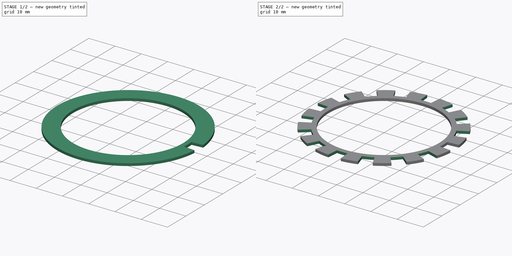
[diagram: build sequence overview — one tinted view per stage of 2, left to right]
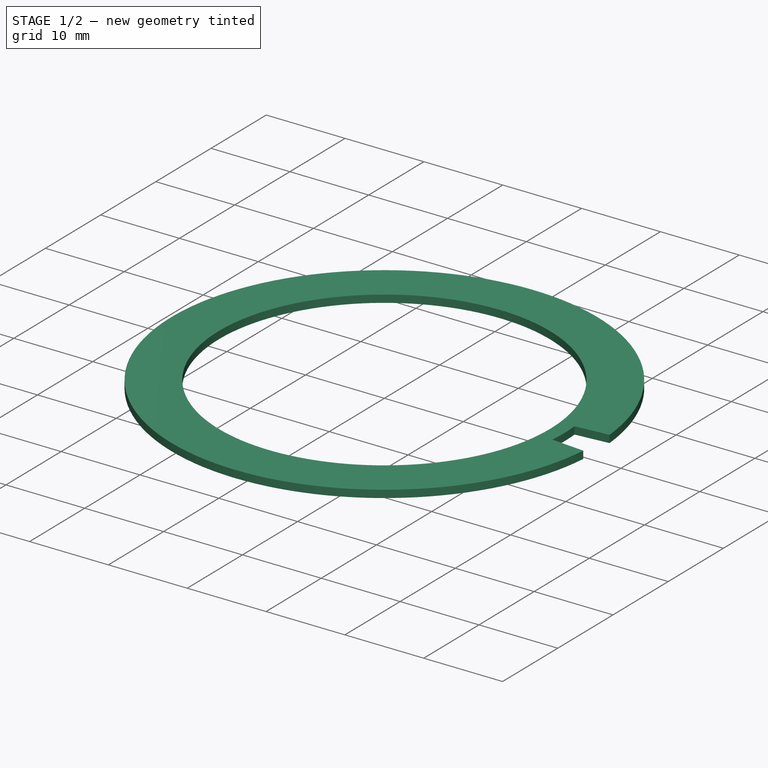
[diagram: stage 1 of 2 — iso view after this stage's code; geometry added in this stage tinted green]
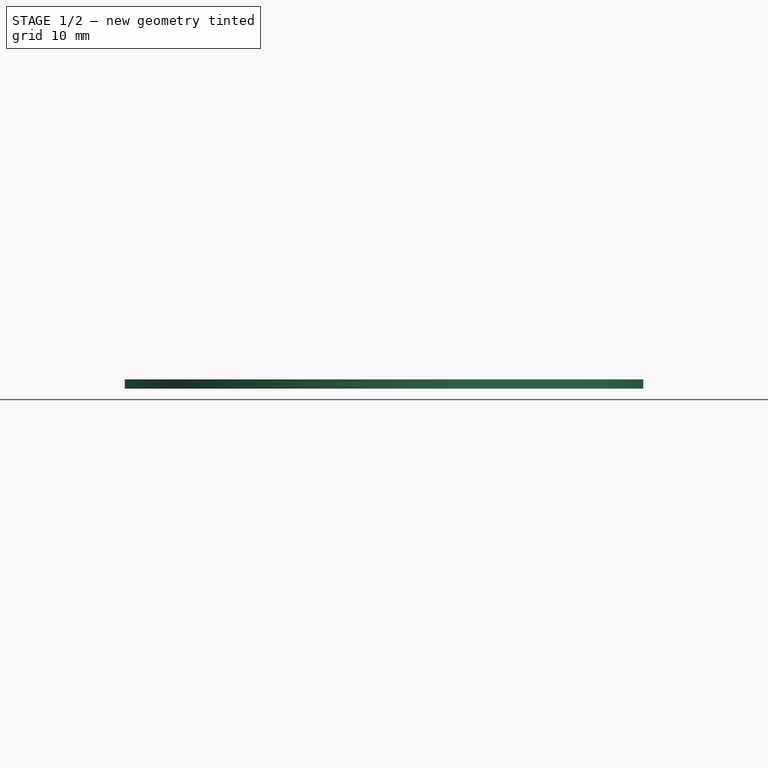
[diagram: stage 1 of 2 — front view after this stage's code; geometry added in this stage tinted green]
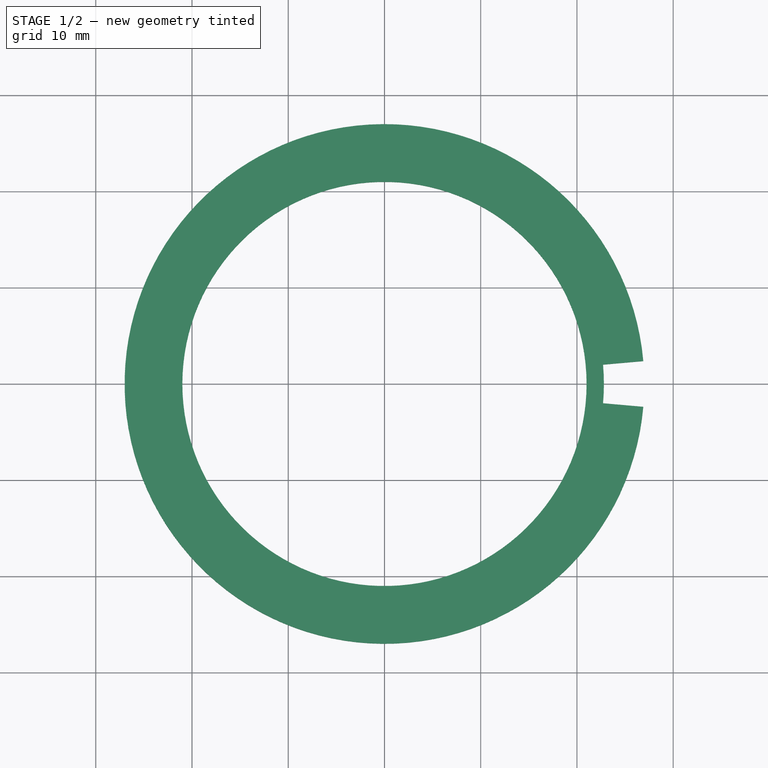
[diagram: stage 1 of 2 — top view after this stage's code; geometry added in this stage tinted green]
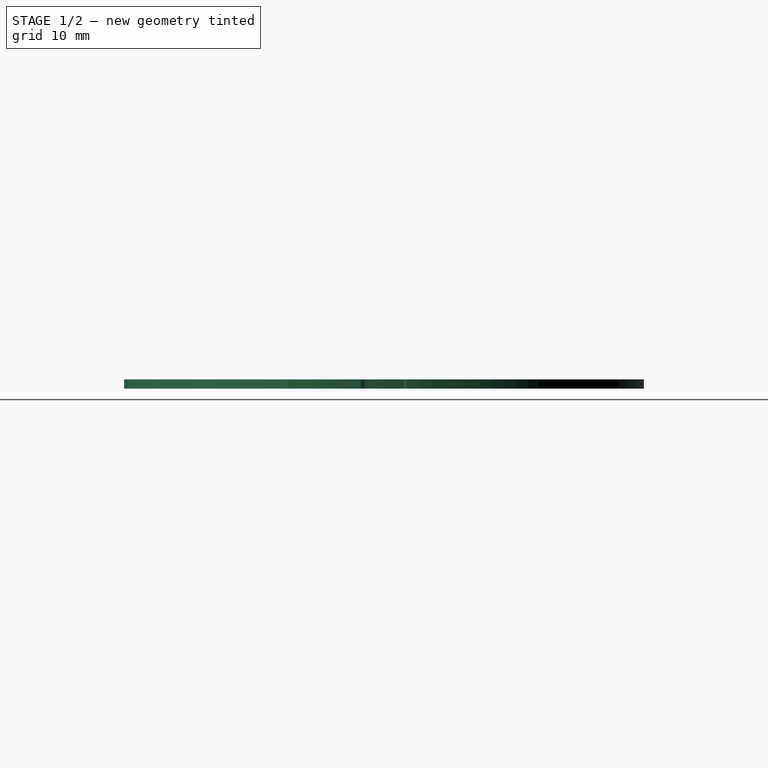
[diagram: stage 1 of 2 — right view after this stage's code; geometry added in this stage tinted green]
FCSTD DOCUMENT  (FreeCAD 0.16R6705 (Git))
Label: KneeBearingCage
License: All rights reserved
LicenseURL: http://en.wikipedia.org/wiki/All_rights_reserved
objects: Sketcher::SketchObject×2, PartDesign::Pad×1, PartDesign::Pocket×1, PartDesign::PolarPattern×1
note: 7 computed .brp shape members not serialized (recipe doc carries the construction recipe); baked Part::Feature solids carry a one-line shape summary decoded from their .brp

FEATURE [Sketcher::SketchObject] Sketch
  sketch-geometry (3):
    g0: Circle CenterX=0 CenterY=0 CenterZ=0 NormalX=0 NormalY=0 NormalZ=1 Radius=21
    g1: Circle [constr] CenterX=0 CenterY=0 CenterZ=0 NormalX=0 NormalY=0 NormalZ=1 Radius=25
    g2: Circle CenterX=0 CenterY=0 CenterZ=0 NormalX=0 NormalY=0 NormalZ=1 Radius=27
  constraints (6):
    c: Coincident(g0,g-1)
    c: Coincident(g1,g-1)
    c: Radius(g1) = 25
    c: Radius(g0) = 21
    c: Coincident(g2,g-1)
    c: Radius(g2) = 27
FEATURE [PartDesign::Pad] Pad
  Length = 0.95
  Length2 = 100
  Sketch = -> Sketch
  Type = 0
FEATURE [Sketcher::SketchObject] Sketch001
  Placement = pos=(0,0,0.95) rot=(0,0,1;0rad)
  Support = -> Pad [Face4]
  sketch-geometry (7):
    g0: Circle [constr] CenterX=25 CenterY=0 CenterZ=0 NormalX=0 NormalY=0 NormalZ=1 Radius=2.2
    g1: ArcOfCircle CenterX=0 CenterY=0 CenterZ=0 NormalX=0 NormalY=0 NormalZ=1 Radius=22.8 StartAngle=6.19507 EndAngle=6.3713
    g2: LineSegment [constr] StartX=0 StartY=0 StartZ=0 EndX=22.7115 EndY=2.0064 EndZ=0
    g3: LineSegment [constr] StartX=0 StartY=0 StartZ=0 EndX=22.7115 EndY=-2.0064 EndZ=0
    g4: LineSegment StartX=22.7115 StartY=2.0064 StartZ=0 EndX=30 EndY=2.65028 EndZ=0
    g5: LineSegment StartX=30 StartY=2.65028 StartZ=0 EndX=30 EndY=-2.65028 EndZ=0
    g6: LineSegment StartX=30 StartY=-2.65028 StartZ=0 EndX=22.7115 EndY=-2.0064 EndZ=0
  constraints (19):
    c: PointOnObject(g0,g-1)
    c: Radius(g0) = 2.2
    c: DistanceX(g-1,g0) = 25
    c: Coincident(g1,g-1)
    c: Coincident(g2,g-1)
    c: Coincident(g2,g1)
    c: Coincident(g3,g1)
    c: Coincident(g1,g4)
    c: Coincident(g4,g5)
    c: Vertical(g5)
    c: Coincident(g5,g6)
    c: Coincident(g6,g1)
    c: Tangent(g4,g0)
    c: Parallel(g4,g2)
    c: Parallel(g6,g3)
    c: Tangent(g6,g0)
    c: Tangent(g0,g1)
    c: DistanceX(g-1,g5) = 30
    c: Coincident(g3,g-1)
FEATURE [PartDesign::Pocket] Pocket
  Length = 5
  Sketch = -> Sketch001
  Type = 1
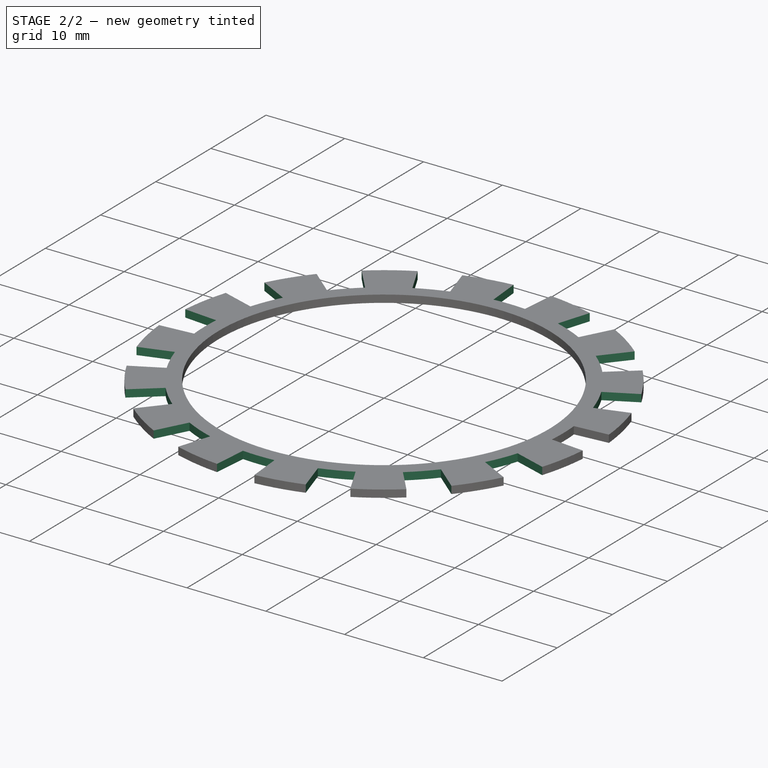
[diagram: stage 2 of 2 — iso view after this stage's code; geometry added in this stage tinted green]
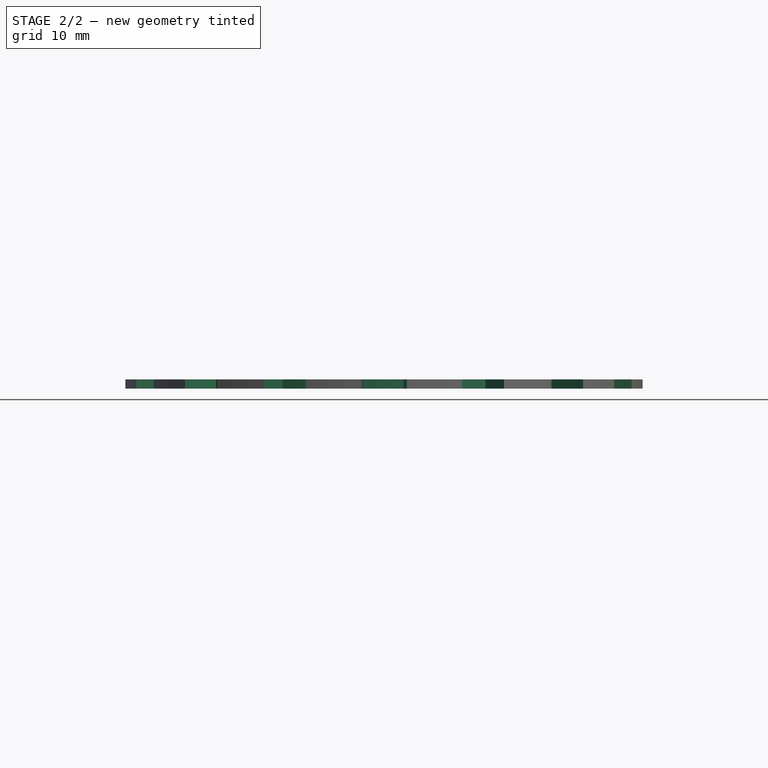
[diagram: stage 2 of 2 — front view after this stage's code; geometry added in this stage tinted green]
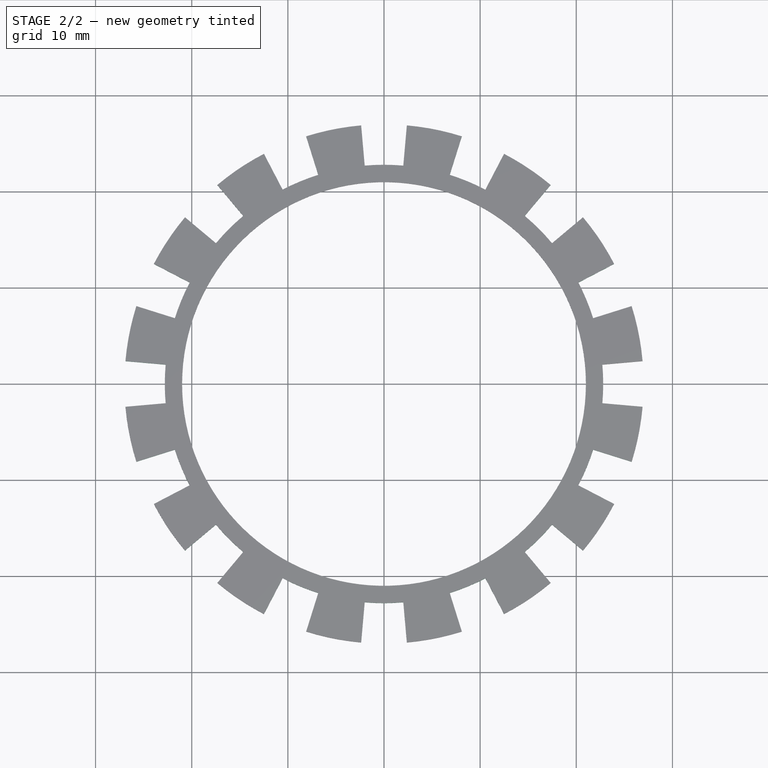
[diagram: stage 2 of 2 — top view after this stage's code; geometry added in this stage tinted green]
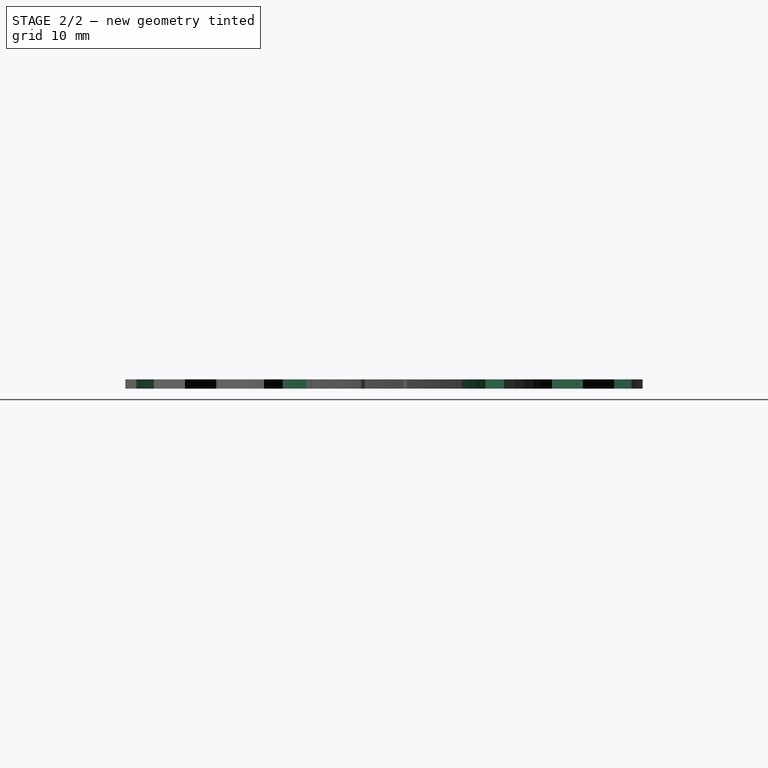
[diagram: stage 2 of 2 — right view after this stage's code; geometry added in this stage tinted green]
FEATURE [PartDesign::PolarPattern] PolarPattern
  Angle = 360
  Axis = -> Sketch001 [N_Axis]
  Occurrences = 16
  Originals = -> [Pocket]
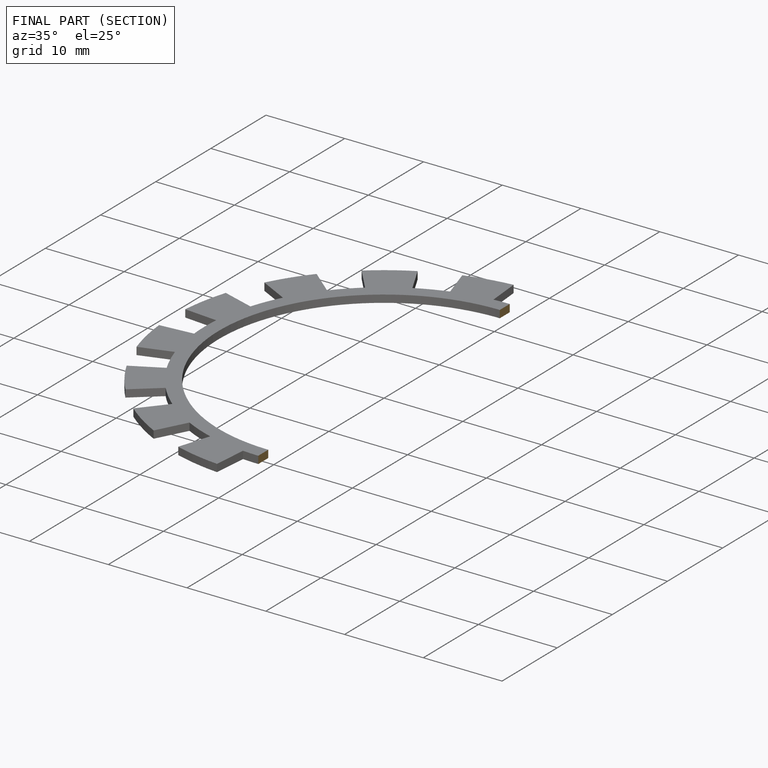
[diagram: finished part — half-section view (interior)]
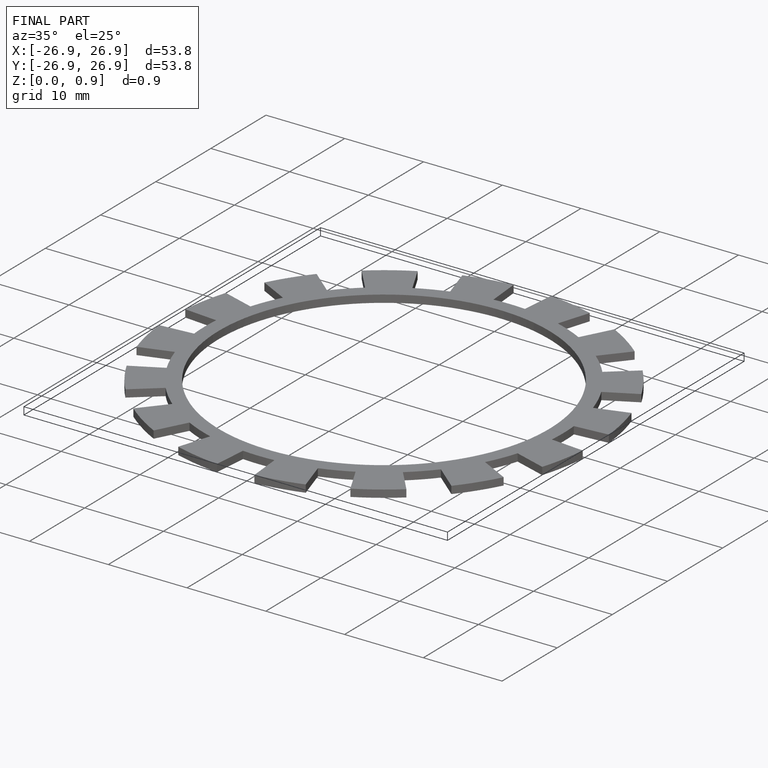
[diagram: finished part — iso view with bounding-box wireframe]
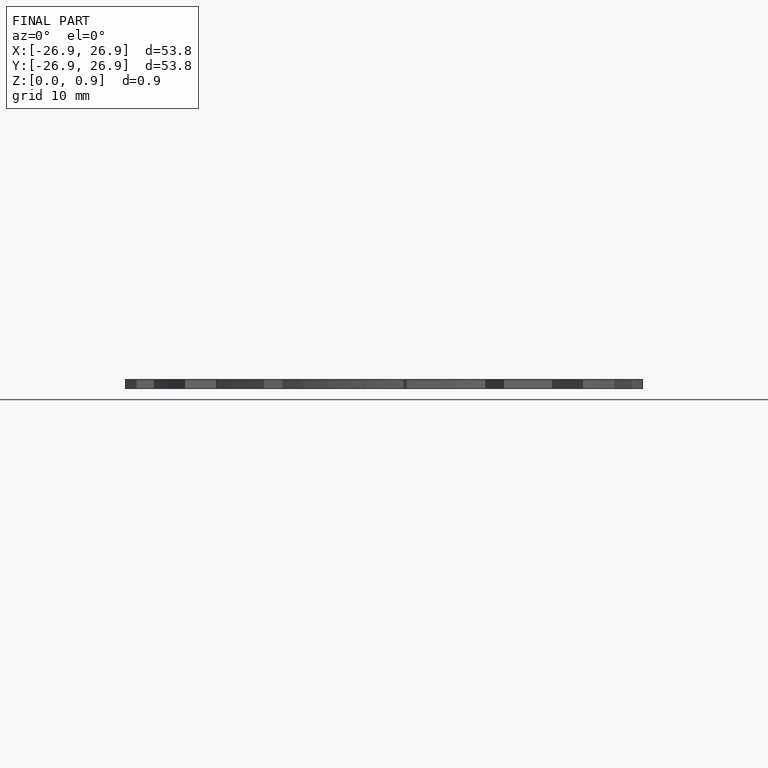
[diagram: finished part — front view with bounding-box wireframe]
